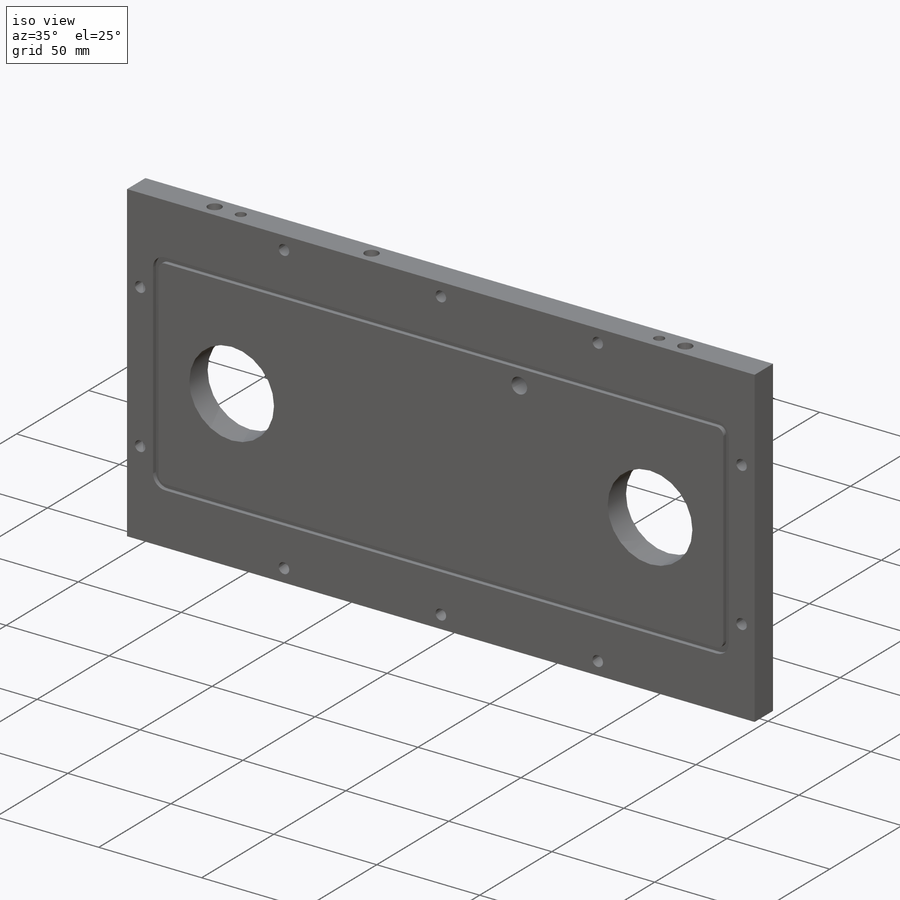
[diagram: iso view]
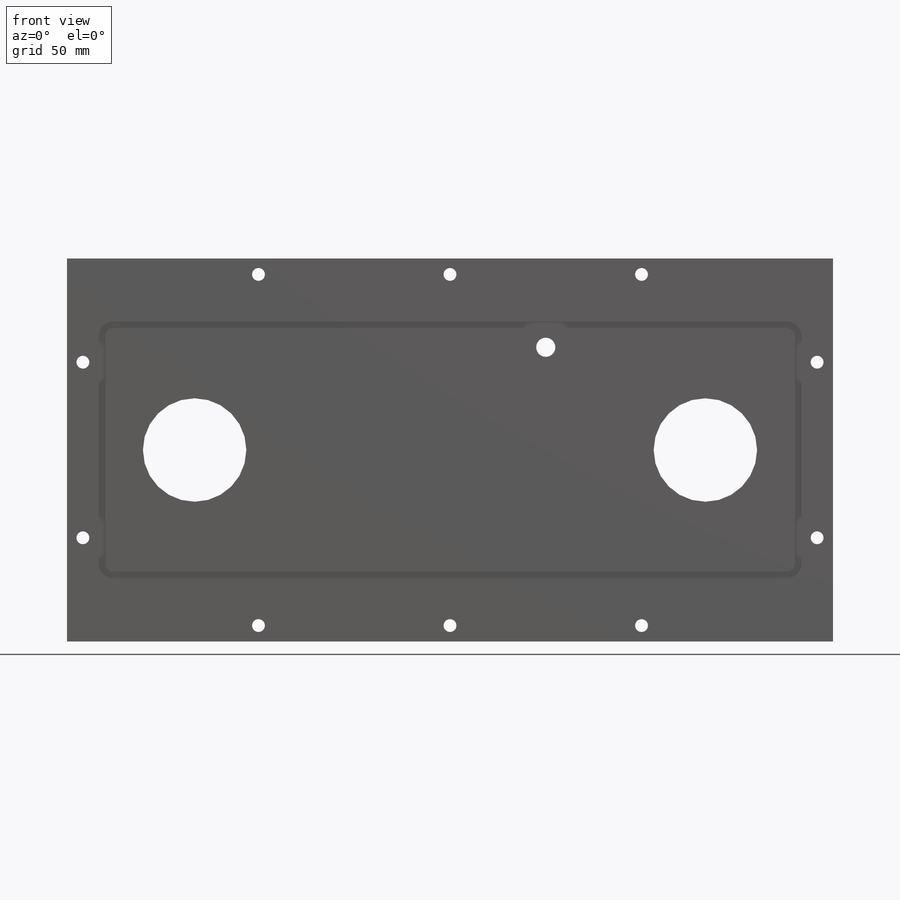
[diagram: front view]
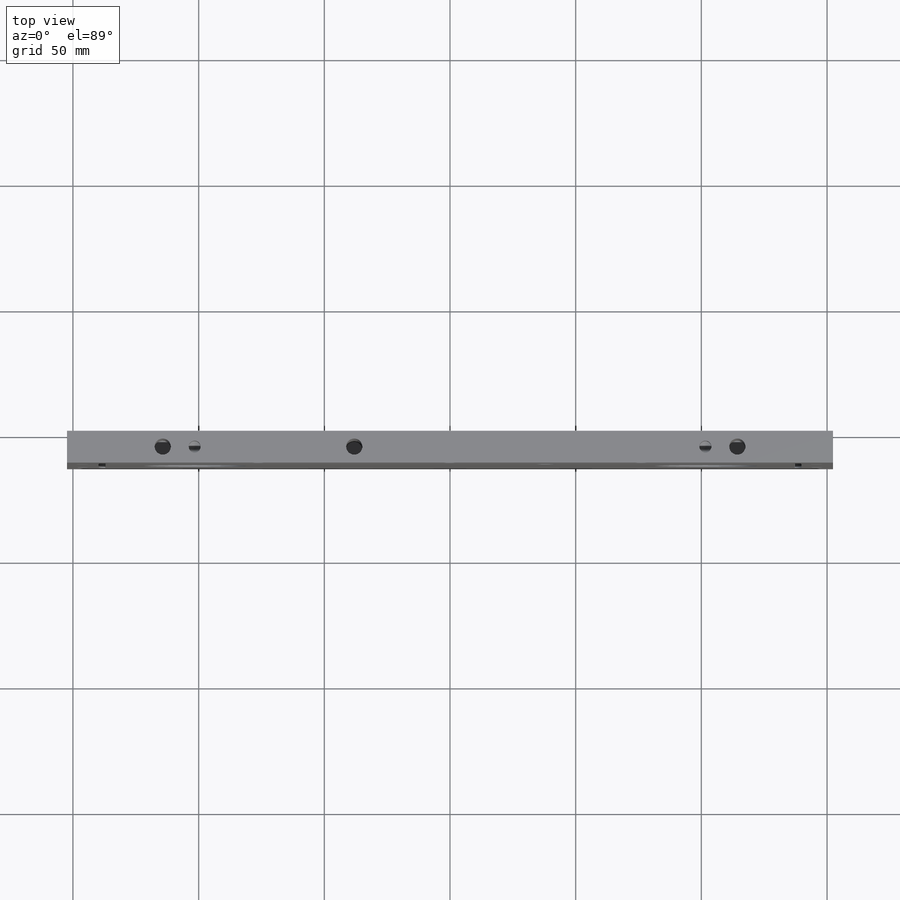
[diagram: top view]
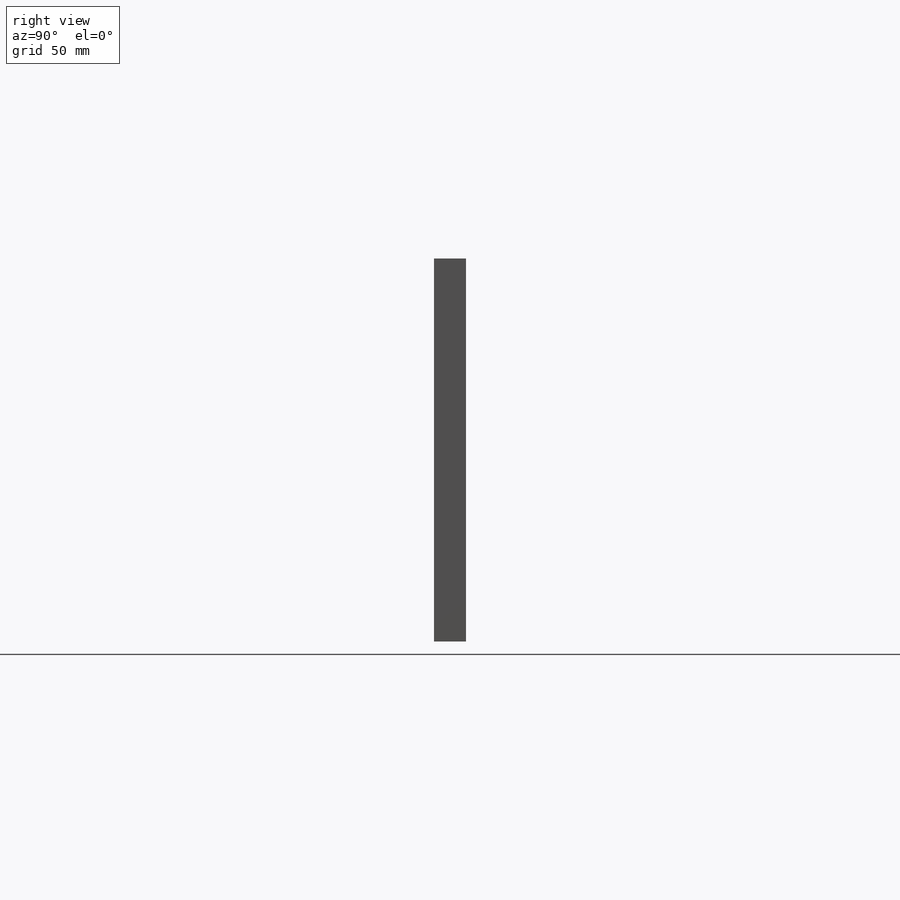
[diagram: right view]
SOLIDWORKS PART (.sldprt)
format: sldprt  version: not decoded by parser v0  size: 669,184 bytes
history: native  units: mm
features: sketch x22, hole x8, cut_extrude x4, mirror x4, extrude x2, fillet x2, material x1, plane x1, pattern_circular x1 (+13 scaffold rows collapsed)
feature tree (58):
  scaffold x13  (default folders/planes/origin — collapsed)
  material  "Material <not specified>"
  plane  "Plane1"  Offset=12.7mm
  sketch  "Sketch1"  dims[D1=152.4mm D2=304.8mm D3=152.4mm D4=76.2mm]
  extrude  "Boss-Extrude1"  Depth=12.7mm
  sketch  "Sketch2"
  cut_extrude  "Cut-Extrude1"  Depth=2.032mm
  sketch  "Sketch3"
  extrude  "Boss-Extrude2"  Depth=2.032mm
  hole  "M36 Clearance Hole1"  Diameter=41.148mm Depth=12.7mm
  sketch  "Sketch5"
  sketch  "Sketch4"  dims[hole-wizard template sketch: 59 standard entries collapsed; hole parameters kept: c18.Thru Hole Dia.=41.148mm c18.Thru Hole Depth=12.7mm]
  hole  "M7 Clearance Hole1"  Diameter=7.62mm Depth=12.7mm
  sketch  "Sketch7"  dims[D1=35.3314mm D2=114.3mm]
  sketch  "Sketch6"  dims[hole-wizard template sketch: 59 standard entries collapsed; hole parameters kept: c18.Thru Hole Dia.=7.62mm c18.Thru Hole Depth=12.7mm]
  hole  "M36 Clearance Hole2"  Diameter=41.148mm Depth=12.7mm
  sketch  "Sketch11"
  sketch  "Sketch10"  dims[hole-wizard template sketch: 59 standard entries collapsed; hole parameters kept: c18.Thru Hole Dia.=41.148mm c18.Thru Hole Depth=12.7mm]
  hole  "M3.5 Clearance Hole2"  Diameter=3.7973mm Depth=7.874mm
  sketch  "Sketch13"
  sketch  "Sketch12"  dims[hole-wizard template sketch: 47 standard entries collapsed; hole parameters kept: c15.Hole Depth=7.874mm c15.D3=~14.816244mm c15.Drill Angle=118.0deg]
  hole  "CBORE for #10 Binding Head Machine Screw1"  Diameter=5.1054mm Depth=12.7mm
  sketch  "Sketch15"  dims[D1=6.35mm D2=6.35mm D3=6.35mm D4=76.2mm D5=41.275mm]
  sketch  "Sketch14"  dims[hole-wizard template sketch: 43 standard entries collapsed; hole parameters kept: c12.C'Bore Dia.=11.1125mm c12.C'Bore Depth=3.1242mm]
  hole  "M4 Clearance Hole1"  Diameter=4.7625mm Depth=12.7mm
  sketch  "Sketch17"
  sketch  "Sketch16"  dims[hole-wizard template sketch: 47 standard entries collapsed; hole parameters kept: c15.Hole Depth=12.7mm c15.D3=~14.816244mm c15.Drill Angle=118.0deg]
  hole  "M4 Clearance Hole2"  Diameter=4.7625mm Depth=12.7mm
  sketch  "Sketch19"
  sketch  "Sketch18"  dims[hole-wizard template sketch: 47 standard entries collapsed; hole parameters kept: c15.Hole Depth=12.7mm c15.D3=~14.816244mm c15.Drill Angle=118.0deg]
  fillet  "Fillet1"  Radius=3.175mm
  fillet  "Fillet2"  Radius=5.8166mm
  mirror  "Mirror1"
  mirror  "Mirror2"
  hole  "#10-24 Tapped Hole1"  Diameter=3.7973mm Depth=7.74954mm
  sketch  "Sketch21"  dims[D1=~18.999962mm]
  sketch  "Sketch20"  dims[hole-wizard template sketch: 47 standard entries collapsed; hole parameters kept: c15.Tap Drill Depth=~7.74954mm c15.D3=~14.816244mm c15.Drill Angle=118.0deg]
  pattern_circular  "CirPattern1"  Count=6 Angle=360deg
  sketch  "Sketch22"  dims[c1.D3=6.477mm c1.D4=6.477mm c1.D1=6.35mm c1.D2=6.35mm c2.D1=114.3mm]
  cut_extrude  "Cut-Extrude2"  Depth=76.2mm
  sketch  "Sketch23"  dims[c1.D3=6.477mm c1.D4=6.477mm c1.D2=6.477mm c1.D1=6.35mm c2.D2=6.35mm c2.D1=6.35mm c3.D2=38.1mm]
  cut_extrude  "Cut-Extrude3"  Depth=50.8mm
  mirror  "Mirror5"
  mirror  "Mirror6"
  sketch  "Sketch24"  dims[D1=6.477mm D2=6.35mm D3=114.3mm]
  cut_extrude  "Cut-Extrude4"  Depth=76.2mm
decode coverage: 32 of 43 modeling features carry decoded parameters
note: ~ marks probable driven/reference dimensions
summary: Diameter pulled from absorbed wizard sketch
note: suppression state not decoded; provenance and decode notes live in map.json
